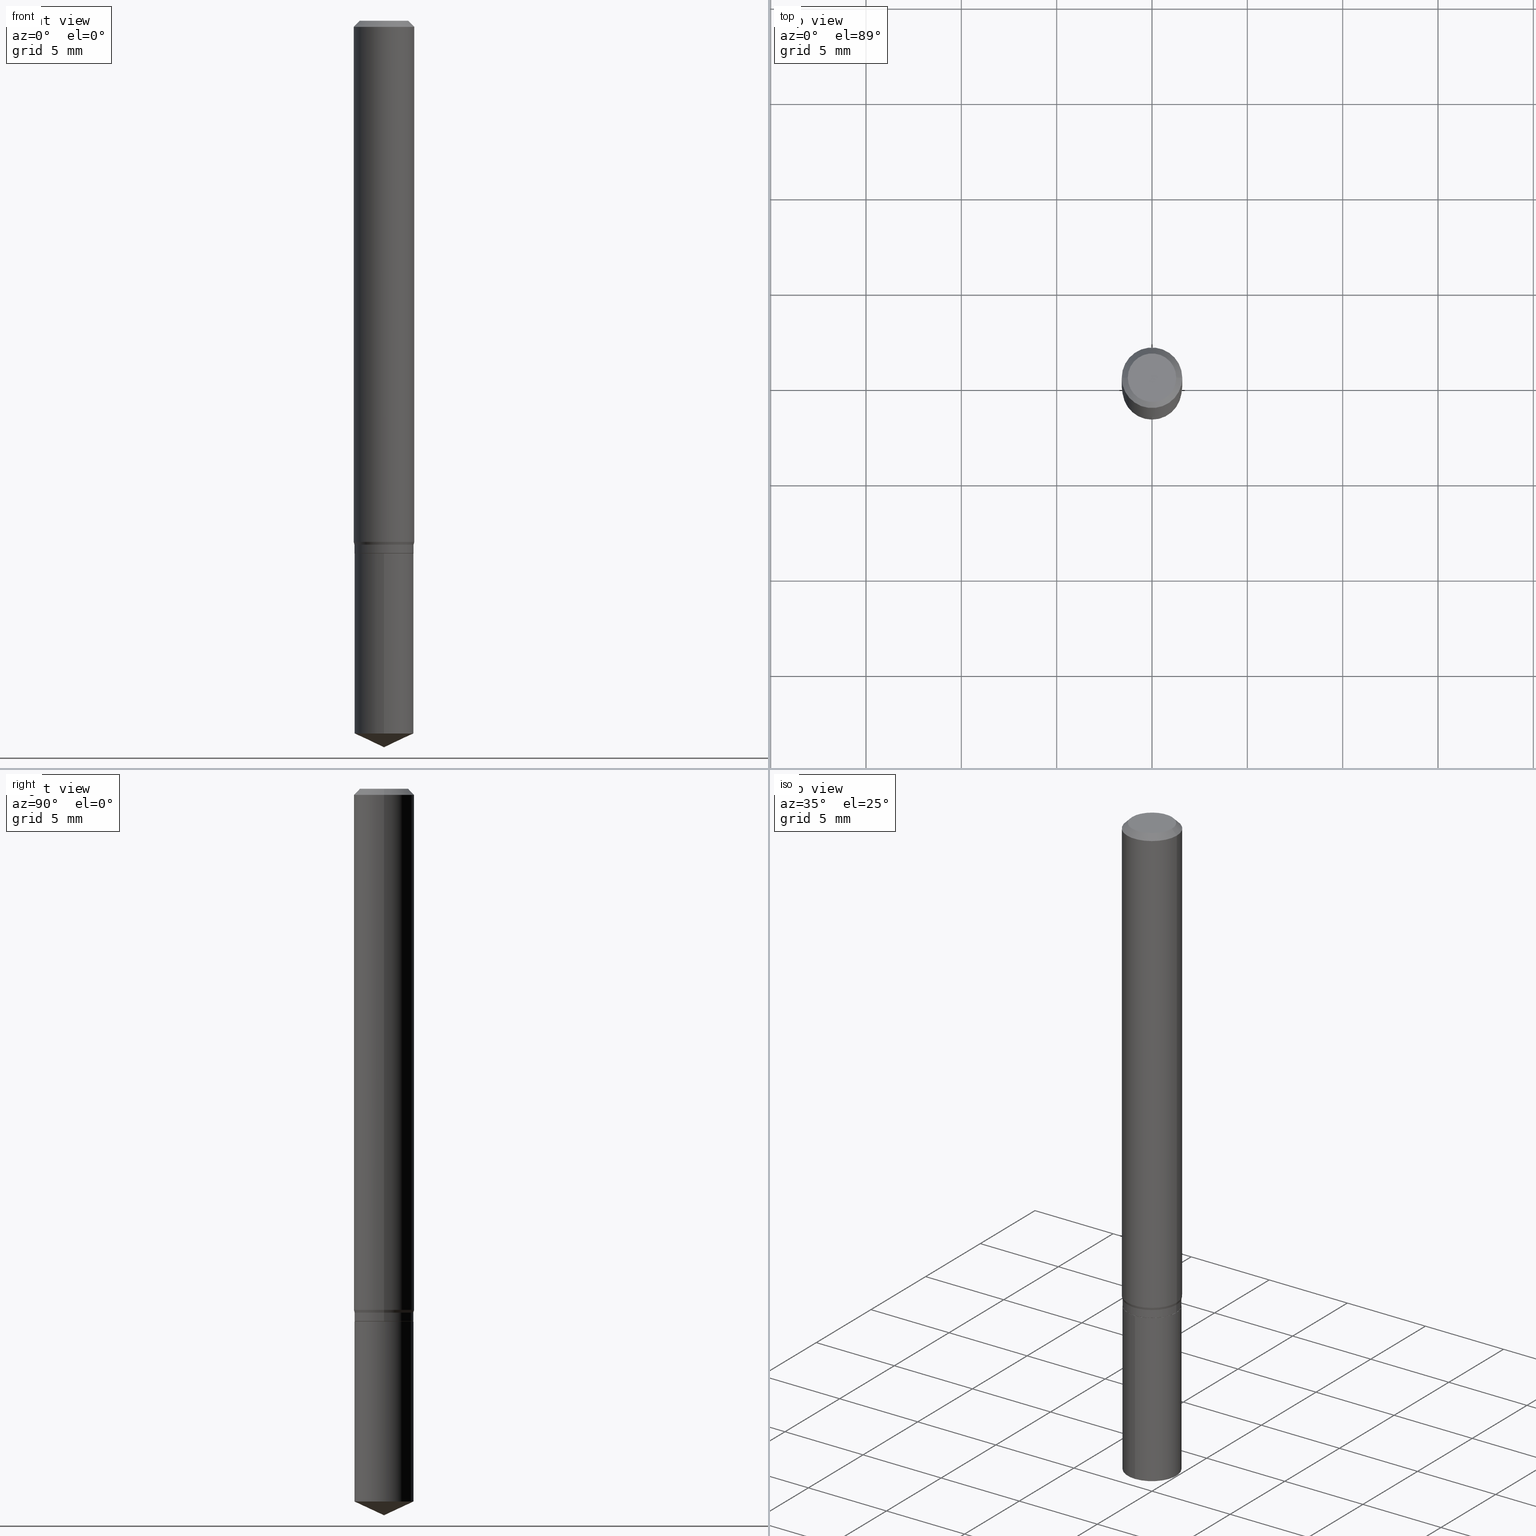
[diagram: canonical four-view strip — front | top / right | iso, engineering-drawing reading convention]
A machine part, canonical four-view strip (front | top / right | iso — engineering-drawing reading convention). The complete STEP part file that produces these views, byte-faithful:
ISO-10303-21;
HEADER;
FILE_DESCRIPTION (( 'STEP AP203' ),
    '1' );
FILE_NAME ('07229.STEP',
    '2024-04-23T20:06:19',
    ( '' ),
    ( '' ),
    'SwSTEP 2.0',
    'SolidWorks 2023',
    '' );
FILE_SCHEMA (( 'CONFIG_CONTROL_DESIGN' ));
ENDSEC;

DATA;
#1 = DIRECTION ( 'NONE',  ( -2.445468806185136597E-29, 3.491481338843145583E-15, 1.000000000000000000 ) ) ;
#2 = CARTESIAN_POINT ( 'NONE',  ( 0.04999999999999999584, -4.077247707424184212E-16, -1.592040838888913461E-18 ) ) ;
#3 = EDGE_CURVE ( 'NONE', #222, #96, #373, .T. ) ;
#4 = CALENDAR_DATE ( 2024, 23, 4 ) ;
#5 = CARTESIAN_POINT ( 'NONE',  ( -9.260740279983036507E-28, 1.322265303911854087E-13, 37.87007874015748143 ) ) ;
#6 = CONICAL_SURFACE ( 'NONE', #287, 0.06099999999999999173, 0.2617993877991509066 ) ;
#7 = SECURITY_CLASSIFICATION ( '', '', #465 ) ;
#8 = CARTESIAN_POINT ( 'NONE',  ( -0.06250000000000000000, -1.456327441318339620E-15, -0.01250000000000008049 ) ) ;
#9 = APPROVAL_ROLE ( '' ) ;
#10 = EDGE_CURVE ( 'NONE', #96, #66, #38, .T. ) ;
#11 = PERSON_AND_ORGANIZATION ( #89, #128 ) ;
#12 = CARTESIAN_POINT ( 'NONE',  ( 3.893286209682126177E-47, -5.558580879666067980E-33, -1.592040838891559689E-18 ) ) ;
#13 = EDGE_LOOP ( 'NONE', ( #438, #105, #280, #173 ) ) ;
#14 = CIRCLE ( 'NONE', #294, 0.06099999999999999173 ) ;
#15 = CC_DESIGN_APPROVAL ( #52, ( #441 ) ) ;
#16 = ORIENTED_EDGE ( 'NONE', *, *, #223, .T. ) ;
#17 = VERTEX_POINT ( 'NONE', #482 ) ;
#18 = EDGE_CURVE ( 'NONE', #478, #445, #466, .T. ) ;
#19 = DIRECTION ( 'NONE',  ( -1.000000000000000000, 6.982962677686266711E-15, 0.000000000000000000 ) ) ;
#20 = ORIENTED_EDGE ( 'NONE', *, *, #292, .T. ) ;
#21 = COORDINATED_UNIVERSAL_TIME_OFFSET ( 5, 0, .BEHIND. ) ;
#22 = PRODUCT_DEFINITION_SHAPE ( 'NONE', 'NONE',  #273 ) ;
#23 = AXIS2_PLACEMENT_3D ( 'NONE', #157, #451, #406 ) ;
#24 = EDGE_LOOP ( 'NONE', ( #61, #20, #439, #103 ) ) ;
#25 = ADVANCED_FACE ( 'NONE', ( #313 ), #274, .F. ) ;
#26 = ORIENTED_EDGE ( 'NONE', *, *, #92, .T. ) ;
#27 = VERTEX_POINT ( 'NONE', #2 ) ;
#28 = DIRECTION ( 'NONE',  ( -6.982962677686265922E-15, -1.000000000000000000, 4.478439333875842027E-15 ) ) ;
#29 = ORIENTED_EDGE ( 'NONE', *, *, #189, .T. ) ;
#30 = CIRCLE ( 'NONE', #370, 0.06099999999999999173 ) ;
#31 = VECTOR ( 'NONE', #40, 39.37007874015748854 ) ;
#32 = CYLINDRICAL_SURFACE ( 'NONE', #213, 0.06099999999999999173 ) ;
#33 = DIRECTION ( 'NONE',  ( -6.982962677686265922E-15, -1.000000000000000000, 4.478439333875842027E-15 ) ) ;
#34 = CARTESIAN_POINT ( 'NONE',  ( 2.690015686803650369E-29, -3.840629472727460101E-15, -1.100000000000000089 ) ) ;
#35 = DIRECTION ( 'NONE',  ( -2.438088387897960049E-29, 3.491481338843145188E-15, 1.000000000000000000 ) ) ;
#36 = CARTESIAN_POINT ( 'NONE',  ( 0.000000000000000000, 0.000000000000000000, 0.000000000000000000 ) ) ;
#37 = CARTESIAN_POINT ( 'NONE',  ( 3.668252923656895710E-29, -5.237152723863177100E-15, -1.500000000000000222 ) ) ;
#38 = CIRCLE ( 'NONE', #72, 0.06250000000000000000 ) ;
#39 = LOCAL_TIME ( 16, 6, 19.00000000000000000, #203 ) ;
#40 = DIRECTION ( 'NONE',  ( 0.2588190451025221828, 1.565188264969615657E-15, 0.9659258262890678681 ) ) ;
#41 = DIRECTION ( 'NONE',  ( -2.445468806185136597E-29, 3.491481338843145583E-15, 1.000000000000000000 ) ) ;
#42 = ADVANCED_FACE ( 'NONE', ( #190 ), #449, .T. ) ;
#43 = DIRECTION ( 'NONE',  ( 1.000000000000000000, -6.982962677686269866E-15, 0.000000000000000000 ) ) ;
#44 = CC_DESIGN_PERSON_AND_ORGANIZATION_ASSIGNMENT ( #281, #267, ( #7 ) ) ;
#45 = APPROVAL_STATUS ( 'not_yet_approved' ) ;
#46 = DIRECTION ( 'NONE',  ( -2.445468806185136597E-29, 3.491481338843145583E-15, 1.000000000000000000 ) ) ;
#47 = CIRCLE ( 'NONE', #237, 0.06099999999999999173 ) ;
#48 = ADVANCED_FACE ( 'NONE', ( #85 ), #339, .T. ) ;
#49 = DIRECTION ( 'NONE',  ( -2.445399690415121810E-29, 3.491580316559632610E-15, 1.000000000000000000 ) ) ;
#50 = DIRECTION ( 'NONE',  ( -2.445399690415121530E-29, 3.491580316559632610E-15, 1.000000000000000000 ) ) ;
#51 = APPROVAL_DATE_TIME ( #277, #52 ) ;
#52 = APPROVAL ( #393, 'UNSPECIFIED' ) ;
#53 = DIRECTION ( 'NONE',  ( 2.445468806185136597E-29, -3.491481338843145583E-15, -1.000000000000000000 ) ) ;
#54 = SHAPE_DEFINITION_REPRESENTATION ( #22, #67 ) ;
#55 = EDGE_LOOP ( 'NONE', ( #469, #127, #405, #139 ) ) ;
#56 = AXIS2_PLACEMENT_3D ( 'NONE', #158, #305, #160 ) ;
#57 =( GEOMETRIC_REPRESENTATION_CONTEXT ( 3 ) GLOBAL_UNCERTAINTY_ASSIGNED_CONTEXT ( ( #155 ) ) GLOBAL_UNIT_ASSIGNED_CONTEXT ( ( #240, #396, #86 ) ) REPRESENTATION_CONTEXT ( 'NONE', 'WORKASPACE' ) );
#58 = DIRECTION ( 'NONE',  ( 0.7071067811865232589, -2.468850131082003836E-15, 0.7071067811865715536 ) ) ;
#59 = AXIS2_PLACEMENT_3D ( 'NONE', #104, #304, #75 ) ;
#60 = ORIENTED_EDGE ( 'NONE', *, *, #397, .F. ) ;
#61 = ORIENTED_EDGE ( 'NONE', *, *, #223, .F. ) ;
#62 = ORIENTED_EDGE ( 'NONE', *, *, #268, .F. ) ;
#63 = AXIS2_PLACEMENT_3D ( 'NONE', #270, #46, #415 ) ;
#64 = ORIENTED_EDGE ( 'NONE', *, *, #324, .T. ) ;
#65 = APPROVAL ( #437, 'UNSPECIFIED' ) ;
#66 = VERTEX_POINT ( 'NONE', #308 ) ;
#67 = ADVANCED_BREP_SHAPE_REPRESENTATION ( '07229', ( #366, #209, #342 ), #57 ) ;
#68 = CARTESIAN_POINT ( 'NONE',  ( 0.06250000000000000000, -4.724246415962602840E-16, -0.01250000000000008049 ) ) ;
#69 = EDGE_LOOP ( 'NONE', ( #100, #471 ) ) ;
#70 = FACE_OUTER_BOUND ( 'NONE', #395, .T. ) ;
#71 = EDGE_LOOP ( 'NONE', ( #359, #187, #401, #430 ) ) ;
#72 = AXIS2_PLACEMENT_3D ( 'NONE', #219, #331, #108 ) ;
#73 = DIRECTION ( 'NONE',  ( -2.445468806185136597E-29, 3.491481338843145583E-15, 1.000000000000000000 ) ) ;
#74 = EDGE_LOOP ( 'NONE', ( #323, #409, #289, #291 ) ) ;
#75 = DIRECTION ( 'NONE',  ( -1.000000000000000000, 6.982962677686265922E-15, -4.876176775795935793E-29 ) ) ;
#76 = DIRECTION ( 'NONE',  ( -2.445468806185136597E-29, 3.491481338843145583E-15, 1.000000000000000000 ) ) ;
#77 = CARTESIAN_POINT ( 'NONE',  ( 0.06099999999999999173, -4.202696087565493352E-15, -1.081700000000000106 ) ) ;
#78 = CARTESIAN_POINT ( 'NONE',  ( 3.668099535622682715E-29, -5.237370474839449507E-15, -1.500000000000000222 ) ) ;
#79 = VECTOR ( 'NONE', #91, 39.37007874015748854 ) ;
#80 = CONICAL_SURFACE ( 'NONE', #488, 0.06049999999999999128, 0.7853981633974141952 ) ;
#81 = COORDINATED_UNIVERSAL_TIME_OFFSET ( 5, 0, .BEHIND. ) ;
#82 = DIRECTION ( 'NONE',  ( -2.445468806185136597E-29, 3.491481338843145583E-15, 1.000000000000000000 ) ) ;
#83 = DIRECTION ( 'NONE',  ( 1.000000000000000000, -6.982962677686269866E-15, 0.000000000000000000 ) ) ;
#84 = EDGE_CURVE ( 'NONE', #402, #96, #156, .T. ) ;
#85 = FACE_OUTER_BOUND ( 'NONE', #71, .T. ) ;
#86 =( NAMED_UNIT ( * ) SI_UNIT ( $, .STERADIAN. ) SOLID_ANGLE_UNIT ( ) );
#87 = PRODUCT ( '07229', '07229', '', ( #458 ) ) ;
#88 = FACE_OUTER_BOUND ( 'NONE', #257, .T. ) ;
#89 = PERSON ( 'UNSPECIFIED', 'UNSPECIFIED', 'UNSPECIFIED', ('UNSPECIFIED'), ('UNSPECIFIED'), ('UNSPECIFIED') ) ;
#90 = ORIENTED_EDGE ( 'NONE', *, *, #92, .F. ) ;
#91 = DIRECTION ( 'NONE',  ( -0.7071067811865232589, 7.493145998870265808E-15, 0.7071067811865715536 ) ) ;
#92 = EDGE_CURVE ( 'NONE', #27, #222, #301, .T. ) ;
#93 = ORIENTED_EDGE ( 'NONE', *, *, #123, .F. ) ;
#94 = AXIS2_PLACEMENT_3D ( 'NONE', #470, #53, #19 ) ;
#95 = DIRECTION ( 'NONE',  ( 1.000000000000000000, -6.982962677686269866E-15, 0.000000000000000000 ) ) ;
#96 = VERTEX_POINT ( 'NONE', #8 ) ;
#97 = APPLICATION_CONTEXT ( 'configuration controlled 3d designs of mechanical parts and assemblies' ) ;
#98 = ORIENTED_EDGE ( 'NONE', *, *, #258, .T. ) ;
#99 = COORDINATED_UNIVERSAL_TIME_OFFSET ( 5, 0, .BEHIND. ) ;
#100 = ORIENTED_EDGE ( 'NONE', *, *, #18, .T. ) ;
#101 = CONICAL_SURFACE ( 'NONE', #248, 84.42940631927440620, 1.134464013796316229 ) ;
#102 = AXIS2_PLACEMENT_3D ( 'NONE', #36, #483, #453 ) ;
#103 = ORIENTED_EDGE ( 'NONE', *, *, #136, .F. ) ;
#104 = CARTESIAN_POINT ( 'NONE',  ( 1.946643104841063088E-47, -2.779290439833033990E-33, -7.960204194457798443E-19 ) ) ;
#105 = ORIENTED_EDGE ( 'NONE', *, *, #324, .F. ) ;
#106 = DIRECTION ( 'NONE',  ( -2.445468806185136597E-29, 3.491481338843145583E-15, 1.000000000000000000 ) ) ;
#107 = ADVANCED_FACE ( 'NONE', ( #487 ), #422, .T. ) ;
#108 = DIRECTION ( 'NONE',  ( 1.000000000000000000, -6.982962677686266711E-15, 0.000000000000000000 ) ) ;
#109 = CYLINDRICAL_SURFACE ( 'NONE', #480, 0.06250000000000006939 ) ;
#110 = EDGE_LOOP ( 'NONE', ( #365, #147, #243 ) ) ;
#111 = CC_DESIGN_PERSON_AND_ORGANIZATION_ASSIGNMENT ( #165, #316, ( #441 ) ) ;
#112 = CARTESIAN_POINT ( 'NONE',  ( 4.334310688136970464E-16, 0.06099999999999615452, -1.100000000000000311 ) ) ;
#113 = DIRECTION ( 'NONE',  ( -2.445468806185136597E-29, 3.491481338843145583E-15, 1.000000000000000000 ) ) ;
#114 = EDGE_CURVE ( 'NONE', #403, #435, #425, .T. ) ;
#115 = DIRECTION ( 'NONE',  ( -2.445468806185136877E-29, 3.491481338843145188E-15, 1.000000000000000000 ) ) ;
#116 = CARTESIAN_POINT ( 'NONE',  ( -0.06099999999999999173, -3.343304295412969600E-15, -1.081700000000000106 ) ) ;
#117 = PERSON_AND_ORGANIZATION_ROLE ( 'creator' ) ;
#118 = DIRECTION ( 'NONE',  ( -2.445468806185136597E-29, 3.491481338843145583E-15, 1.000000000000000000 ) ) ;
#119 = AXIS2_PLACEMENT_3D ( 'NONE', #166, #130, #242 ) ;
#120 = APPROVAL_PERSON_ORGANIZATION ( #205, #52, #9 ) ;
#121 = CARTESIAN_POINT ( 'NONE',  ( -4.259607233388352844E-16, -0.06100000000000383588, -1.099999999999999645 ) ) ;
#122 = CARTESIAN_POINT ( 'NONE',  ( 2.690015686803650369E-29, -3.840629472727460101E-15, -1.100000000000000089 ) ) ;
#123 = EDGE_CURVE ( 'NONE', #17, #402, #227, .T. ) ;
#124 = PERSON_AND_ORGANIZATION ( #89, #128 ) ;
#125 = DIRECTION ( 'NONE',  ( -2.445468806185136597E-29, 3.491481338843145583E-15, 1.000000000000000000 ) ) ;
#126 = CARTESIAN_POINT ( 'NONE',  ( 0.000000000000000000, 0.000000000000000000, 0.000000000000000000 ) ) ;
#127 = ORIENTED_EDGE ( 'NONE', *, *, #369, .T. ) ;
#128 = ORGANIZATION ( 'UNSPECIFIED', 'UNSPECIFIED', '' ) ;
#129 = DATE_AND_TIME ( #238, #250 ) ;
#130 = DIRECTION ( 'NONE',  ( -2.445468806185136597E-29, 3.491481338843145583E-15, 1.000000000000000000 ) ) ;
#131 = APPROVAL_DATE_TIME ( #314, #65 ) ;
#132 = ADVANCED_FACE ( 'NONE', ( #380 ), #473, .T. ) ;
#133 = DIRECTION ( 'NONE',  ( -2.445468806185136597E-29, 3.491481338843145583E-15, 1.000000000000000000 ) ) ;
#134 = CIRCLE ( 'NONE', #153, 0.06250000000000000000 ) ;
#135 = DIRECTION ( 'NONE',  ( -2.445468806185136597E-29, 3.491481338843145583E-15, 1.000000000000000000 ) ) ;
#136 = EDGE_CURVE ( 'NONE', #17, #293, #433, .T. ) ;
#137 = ORIENTED_EDGE ( 'NONE', *, *, #181, .F. ) ;
#138 = DATE_AND_TIME ( #231, #358 ) ;
#139 = ORIENTED_EDGE ( 'NONE', *, *, #477, .F. ) ;
#140 = VERTEX_POINT ( 'NONE', #490 ) ;
#141 = DESIGN_CONTEXT ( 'detailed design', #97, 'design' ) ;
#142 = AXIS2_PLACEMENT_3D ( 'NONE', #206, #133, #322 ) ;
#143 = VECTOR ( 'NONE', #333, 39.37007874015748854 ) ;
#144 = CARTESIAN_POINT ( 'NONE',  ( 2.690015686803650369E-29, -3.840629472727460101E-15, -1.100000000000000089 ) ) ;
#145 = EDGE_CURVE ( 'NONE', #167, #140, #266, .T. ) ;
#146 = CARTESIAN_POINT ( 'NONE',  ( 2.645263607650462130E-29, -3.776735364226630704E-15, -1.081700000000000106 ) ) ;
#147 = ORIENTED_EDGE ( 'NONE', *, *, #145, .T. ) ;
#148 = DIRECTION ( 'NONE',  ( -2.445399690415121810E-29, 3.491580316559632610E-15, 1.000000000000000000 ) ) ;
#149 = ORIENTED_EDGE ( 'NONE', *, *, #413, .F. ) ;
#150 = DIRECTION ( 'NONE',  ( 6.982962677686265922E-15, 1.000000000000000000, -3.491580316559632610E-15 ) ) ;
#151 = DIRECTION ( 'NONE',  ( -6.982962677686265922E-15, -1.000000000000000000, 4.478439333875842027E-15 ) ) ;
#152 = AXIS2_PLACEMENT_3D ( 'NONE', #197, #76, #199 ) ;
#153 = AXIS2_PLACEMENT_3D ( 'NONE', #299, #73, #265 ) ;
#154 = FACE_OUTER_BOUND ( 'NONE', #262, .T. ) ;
#155 = UNCERTAINTY_MEASURE_WITH_UNIT (LENGTH_MEASURE( 1.000000000000000082E-05 ), #240, 'distance_accuracy_value', 'NONE');
#156 = LINE ( 'NONE', #264, #230 ) ;
#157 = CARTESIAN_POINT ( 'NONE',  ( -9.260740279983036507E-28, 1.322265303911854087E-13, 37.87007874015748143 ) ) ;
#158 = CARTESIAN_POINT ( 'NONE',  ( 3.056836007731440539E-31, -4.364351673553960451E-17, -0.01250000000000008049 ) ) ;
#159 = APPLICATION_PROTOCOL_DEFINITION ( 'international standard', 'config_control_design', 1994, #375 ) ;
#160 = DIRECTION ( 'NONE',  ( -1.000000000000000000, 6.982962677686266711E-15, 0.000000000000000000 ) ) ;
#161 = APPROVAL_PERSON_ORGANIZATION ( #290, #65, #474 ) ;
#162 = CARTESIAN_POINT ( 'NONE',  ( -0.06099999999999999173, -3.374378479328673547E-15, -1.099499999999999922 ) ) ;
#163 = COORDINATED_UNIVERSAL_TIME_OFFSET ( 5, 0, .BEHIND. ) ;
#164 = CARTESIAN_POINT ( 'NONE',  ( -0.06049999999999999128, -3.410751117592599502E-15, -1.100000000000000089 ) ) ;
#165 = PERSON_AND_ORGANIZATION ( #89, #128 ) ;
#166 = CARTESIAN_POINT ( 'NONE',  ( 0.000000000000000000, 0.000000000000000000, 0.000000000000000000 ) ) ;
#167 = VERTEX_POINT ( 'NONE', #78 ) ;
#168 = AXIS2_PLACEMENT_3D ( 'NONE', #388, #82, #232 ) ;
#169 = CIRCLE ( 'NONE', #363, 0.06099999999999999173 ) ;
#170 = DIRECTION ( 'NONE',  ( -6.982962677686265922E-15, -1.000000000000000000, 4.478439333875842027E-15 ) ) ;
#171 = VERTEX_POINT ( 'NONE', #229 ) ;
#172 = DIRECTION ( 'NONE',  ( -2.445468806185136597E-29, 3.491481338843145583E-15, 1.000000000000000000 ) ) ;
#173 = ORIENTED_EDGE ( 'NONE', *, *, #10, .T. ) ;
#174 = ADVANCED_FACE ( 'NONE', ( #456 ), #101, .T. ) ;
#175 = ORIENTED_EDGE ( 'NONE', *, *, #114, .F. ) ;
#176 = PERSON_AND_ORGANIZATION_ROLE ( 'creator' ) ;
#177 = VECTOR ( 'NONE', #464, 39.37007874015748143 ) ;
#178 = VERTEX_POINT ( 'NONE', #162 ) ;
#179 = VERTEX_POINT ( 'NONE', #460 ) ;
#180 = CARTESIAN_POINT ( 'NONE',  ( -0.06250000000000000000, 3.927916506198521080E-16, -0.01250000000000008049 ) ) ;
#181 = EDGE_CURVE ( 'NONE', #435, #403, #381, .T. ) ;
#182 = CIRCLE ( 'NONE', #168, 0.06099999999999999173 ) ;
#183 = CARTESIAN_POINT ( 'NONE',  ( 3.598616738193382173E-29, -5.137944410270138335E-15, -1.471555232852545414 ) ) ;
#184 = CC_DESIGN_SECURITY_CLASSIFICATION ( #7, ( #441 ) ) ;
#185 = ORIENTED_EDGE ( 'NONE', *, *, #216, .T. ) ;
#186 = FACE_OUTER_BOUND ( 'NONE', #485, .T. ) ;
#187 = ORIENTED_EDGE ( 'NONE', *, *, #448, .T. ) ;
#188 = DIRECTION ( 'NONE',  ( -2.445468806185136597E-29, 3.491481338843145583E-15, 1.000000000000000000 ) ) ;
#189 = EDGE_CURVE ( 'NONE', #293, #17, #14, .T. ) ;
#190 = FACE_OUTER_BOUND ( 'NONE', #215, .T. ) ;
#191 = LINE ( 'NONE', #376, #383 ) ;
#192 = CC_DESIGN_PERSON_AND_ORGANIZATION_ASSIGNMENT ( #11, #176, ( #441 ) ) ;
#193 = DIRECTION ( 'NONE',  ( -2.445399690415121530E-29, 3.491580316559632610E-15, 1.000000000000000000 ) ) ;
#194 = CIRCLE ( 'NONE', #201, 0.06099999999999999173 ) ;
#195 = AXIS2_PLACEMENT_3D ( 'NONE', #34, #338, #150 ) ;
#196 = PLANE ( 'NONE',  #195 ) ;
#197 = CARTESIAN_POINT ( 'NONE',  ( 2.690015686803650369E-29, -3.840629472727460101E-15, -1.100000000000000089 ) ) ;
#198 = DIRECTION ( 'NONE',  ( -2.445399690415121530E-29, 3.491580316559632610E-15, 1.000000000000000000 ) ) ;
#199 = DIRECTION ( 'NONE',  ( 1.000000000000000000, -6.982962677686269866E-15, 0.000000000000000000 ) ) ;
#200 = AXIS2_PLACEMENT_3D ( 'NONE', #424, #193, #151 ) ;
#201 = AXIS2_PLACEMENT_3D ( 'NONE', #391, #50, #204 ) ;
#202 = CC_DESIGN_DATE_AND_TIME_ASSIGNMENT ( #275, #352, ( #273 ) ) ;
#203 = COORDINATED_UNIVERSAL_TIME_OFFSET ( 5, 0, .BEHIND. ) ;
#204 = DIRECTION ( 'NONE',  ( -6.982962677686265922E-15, -1.000000000000000000, 4.478439333875842027E-15 ) ) ;
#205 = PERSON_AND_ORGANIZATION ( #89, #128 ) ;
#206 = CARTESIAN_POINT ( 'NONE',  ( 2.631573686900949883E-29, -3.757189785601267277E-15, -1.076101923788646220 ) ) ;
#207 = EDGE_CURVE ( 'NONE', #179, #178, #182, .T. ) ;
#208 = ORIENTED_EDGE ( 'NONE', *, *, #268, .T. ) ;
#209 = MANIFOLD_SOLID_BREP ( 'Body-Move/Copy2[2]', #211 ) ;
#210 = LENGTH_MEASURE_WITH_UNIT ( LENGTH_MEASURE( 0.02539999999999999897 ), #421 );
#211 = CLOSED_SHELL ( 'NONE', ( #328, #286, #379, #297, #249, #428, #459, #348, #132, #361, #25, #42 ) ) ;
#212 = VECTOR ( 'NONE', #384, 39.37007874015748143 ) ;
#213 = AXIS2_PLACEMENT_3D ( 'NONE', #446, #1, #226 ) ;
#214 = EDGE_CURVE ( 'NONE', #171, #140, #47, .T. ) ;
#215 = EDGE_LOOP ( 'NONE', ( #407, #217, #208, #356 ) ) ;
#216 = EDGE_CURVE ( 'NONE', #403, #178, #398, .T. ) ;
#217 = ORIENTED_EDGE ( 'NONE', *, *, #114, .T. ) ;
#218 = DIRECTION ( 'NONE',  ( 0.7071067811865453523, -7.319954787623248157E-15, -0.7071067811865496822 ) ) ;
#219 = CARTESIAN_POINT ( 'NONE',  ( 3.056836007731440539E-31, -4.364351673553960451E-17, -0.01250000000000008049 ) ) ;
#220 = VECTOR ( 'NONE', #330, 39.37007874015748143 ) ;
#221 = DIRECTION ( 'NONE',  ( 1.000000000000000000, -6.982962677686269866E-15, 0.000000000000000000 ) ) ;
#222 = VERTEX_POINT ( 'NONE', #278 ) ;
#223 = EDGE_CURVE ( 'NONE', #178, #17, #288, .T. ) ;
#224 = FACE_OUTER_BOUND ( 'NONE', #74, .T. ) ;
#225 = ORIENTED_EDGE ( 'NONE', *, *, #207, .T. ) ;
#226 = DIRECTION ( 'NONE',  ( 1.000000000000000000, -6.982962677686267499E-15, 4.876176775795935793E-29 ) ) ;
#227 = LINE ( 'NONE', #116, #269 ) ;
#228 = PLANE ( 'NONE',  #59 ) ;
#229 = CARTESIAN_POINT ( 'NONE',  ( -4.259607233388263111E-16, -0.06100000000000515427, -1.471555232852544970 ) ) ;
#230 = VECTOR ( 'NONE', #454, 39.37007874015748143 ) ;
#231 = CALENDAR_DATE ( 2024, 23, 4 ) ;
#232 = DIRECTION ( 'NONE',  ( 1.000000000000000000, -6.982962677686269866E-15, 0.000000000000000000 ) ) ;
#233 = EDGE_CURVE ( 'NONE', #402, #319, #399, .T. ) ;
#234 = DIRECTION ( 'NONE',  ( 1.000000000000000000, -6.982962677686269866E-15, 0.000000000000000000 ) ) ;
#235 = PERSON_AND_ORGANIZATION ( #89, #128 ) ;
#236 = DIRECTION ( 'NONE',  ( 1.000000000000000000, -6.982962677686269866E-15, 0.000000000000000000 ) ) ;
#237 = AXIS2_PLACEMENT_3D ( 'NONE', #463, #276, #170 ) ;
#238 = CALENDAR_DATE ( 2024, 23, 4 ) ;
#239 = ORIENTED_EDGE ( 'NONE', *, *, #189, .F. ) ;
#240 =( CONVERSION_BASED_UNIT ( 'INCH', #210 ) LENGTH_UNIT ( ) NAMED_UNIT ( #255 ) );
#241 = FACE_OUTER_BOUND ( 'NONE', #246, .T. ) ;
#242 = DIRECTION ( 'NONE',  ( 1.000000000000000000, -6.982962677686267499E-15, 4.876176775795935793E-29 ) ) ;
#243 = ORIENTED_EDGE ( 'NONE', *, *, #214, .F. ) ;
#244 = FACE_OUTER_BOUND ( 'NONE', #443, .T. ) ;
#245 = EDGE_LOOP ( 'NONE', ( #137, #175 ) ) ;
#246 = EDGE_LOOP ( 'NONE', ( #90, #251, #412, #329 ) ) ;
#247 = ORIENTED_EDGE ( 'NONE', *, *, #413, .T. ) ;
#248 = AXIS2_PLACEMENT_3D ( 'NONE', #5, #198, #311 ) ;
#249 = ADVANCED_FACE ( 'NONE', ( #426 ), #325, .T. ) ;
#250 = LOCAL_TIME ( 16, 6, 19.00000000000000000, #21 ) ;
#251 = ORIENTED_EDGE ( 'NONE', *, *, #442, .T. ) ;
#252 = FACE_OUTER_BOUND ( 'NONE', #24, .T. ) ;
#253 = CC_DESIGN_PERSON_AND_ORGANIZATION_ASSIGNMENT ( #124, #117, ( #273 ) ) ;
#254 = ORIENTED_EDGE ( 'NONE', *, *, #207, .F. ) ;
#255 = DIMENSIONAL_EXPONENTS ( 1.000000000000000000, 0.000000000000000000, 0.000000000000000000, 0.000000000000000000, 0.000000000000000000, 0.000000000000000000, 0.000000000000000000 ) ;
#256 = DIRECTION ( 'NONE',  ( 1.000000000000000000, -6.982962677686269866E-15, 0.000000000000000000 ) ) ;
#257 = EDGE_LOOP ( 'NONE', ( #431, #185, #254, #62 ) ) ;
#258 = EDGE_CURVE ( 'NONE', #319, #402, #340, .T. ) ;
#259 = CLOSED_SHELL ( 'NONE', ( #107, #174, #434, #48, #423 ) ) ;
#260 = CARTESIAN_POINT ( 'NONE',  ( 0.000000000000000000, 0.000000000000000000, 0.000000000000000000 ) ) ;
#261 = VECTOR ( 'NONE', #218, 39.37007874015748143 ) ;
#262 = EDGE_LOOP ( 'NONE', ( #98, #476, #60, #362 ) ) ;
#263 = CARTESIAN_POINT ( 'NONE',  ( 0.06099999999999999173, -4.259607233388622536E-16, 2.974467833235520511E-30 ) ) ;
#264 = CARTESIAN_POINT ( 'NONE',  ( -0.06250000000000006939, 4.440892098500631092E-16, -3.074334431409319267E-30 ) ) ;
#265 = DIRECTION ( 'NONE',  ( 1.000000000000000000, -6.982962677686266711E-15, 0.000000000000000000 ) ) ;
#266 = LINE ( 'NONE', #37, #212 ) ;
#267 = PERSON_AND_ORGANIZATION_ROLE ( 'classification_officer' ) ;
#268 = EDGE_CURVE ( 'NONE', #435, #179, #436, .T. ) ;
#269 = VECTOR ( 'NONE', #351, 39.37007874015748854 ) ;
#270 = CARTESIAN_POINT ( 'NONE',  ( 3.893286209682126177E-47, -5.558580879666067980E-33, -1.592040838891559689E-18 ) ) ;
#271 = CONICAL_SURFACE ( 'NONE', #23, 84.42940631927440620, 1.134464013796316229 ) ;
#272 = CONICAL_SURFACE ( 'NONE', #392, 0.06099999999999999173, 0.2617993877991509066 ) ;
#273 = PRODUCT_DEFINITION ( 'UNKNOWN', '', #441, #141 ) ;
#274 = PLANE ( 'NONE',  #390 ) ;
#275 = DATE_AND_TIME ( #4, #39 ) ;
#276 = DIRECTION ( 'NONE',  ( -2.445399690415121530E-29, 3.491580316559632610E-15, 1.000000000000000000 ) ) ;
#277 = DATE_AND_TIME ( #315, #295 ) ;
#278 = CARTESIAN_POINT ( 'NONE',  ( -0.04999999999999999584, 3.709698922520826725E-16, -1.592040838894077649E-18 ) ) ;
#279 = AXIS2_PLACEMENT_3D ( 'NONE', #144, #296, #33 ) ;
#280 = ORIENTED_EDGE ( 'NONE', *, *, #3, .T. ) ;
#281 = PERSON_AND_ORGANIZATION ( #89, #128 ) ;
#282 = CARTESIAN_POINT ( 'NONE',  ( -0.06099999999999999173, 4.334310688136610546E-16, -3.000550405055492143E-30 ) ) ;
#283 = EDGE_LOOP ( 'NONE', ( #225, #16, #239, #298 ) ) ;
#284 = DIRECTION ( 'NONE',  ( -2.445468806185136877E-29, 3.491481338843145188E-15, 1.000000000000000000 ) ) ;
#285 = CARTESIAN_POINT ( 'NONE',  ( 2.631573686900949883E-29, -3.757189785601267277E-15, -1.076101923788646220 ) ) ;
#286 = ADVANCED_FACE ( 'NONE', ( #241 ), #310, .T. ) ;
#287 = AXIS2_PLACEMENT_3D ( 'NONE', #326, #135, #236 ) ;
#288 = LINE ( 'NONE', #282, #357 ) ;
#289 = ORIENTED_EDGE ( 'NONE', *, *, #484, .T. ) ;
#290 = PERSON_AND_ORGANIZATION ( #89, #128 ) ;
#291 = ORIENTED_EDGE ( 'NONE', *, *, #10, .F. ) ;
#292 = EDGE_CURVE ( 'NONE', #178, #179, #30, .T. ) ;
#293 = VERTEX_POINT ( 'NONE', #472 ) ;
#294 = AXIS2_PLACEMENT_3D ( 'NONE', #345, #118, #234 ) ;
#295 = LOCAL_TIME ( 16, 6, 19.00000000000000000, #163 ) ;
#296 = DIRECTION ( 'NONE',  ( -2.445399690415121530E-29, 3.491580316559632610E-15, 1.000000000000000000 ) ) ;
#297 = ADVANCED_FACE ( 'NONE', ( #244 ), #6, .T. ) ;
#298 = ORIENTED_EDGE ( 'NONE', *, *, #386, .F. ) ;
#299 = CARTESIAN_POINT ( 'NONE',  ( 3.056836007731440539E-31, -4.364351673553960451E-17, -0.01250000000000008049 ) ) ;
#300 = ORIENTED_EDGE ( 'NONE', *, *, #335, .T. ) ;
#301 = CIRCLE ( 'NONE', #63, 0.04999999999999999584 ) ;
#302 = CARTESIAN_POINT ( 'NONE',  ( 3.668099535622682155E-29, -5.237370474839448718E-15, -1.500000000000000222 ) ) ;
#303 = CARTESIAN_POINT ( 'NONE',  ( 2.690015686803650369E-29, -3.840629472727460101E-15, -1.100000000000000089 ) ) ;
#304 = DIRECTION ( 'NONE',  ( 2.438088387897960049E-29, -3.491481338843145188E-15, -1.000000000000000000 ) ) ;
#305 = DIRECTION ( 'NONE',  ( 2.445468806185136597E-29, -3.491481338843145583E-15, -1.000000000000000000 ) ) ;
#306 = EDGE_CURVE ( 'NONE', #445, #478, #194, .T. ) ;
#307 = DIRECTION ( 'NONE',  ( -2.445468806185136597E-29, 3.491481338843145583E-15, 1.000000000000000000 ) ) ;
#308 = CARTESIAN_POINT ( 'NONE',  ( 0.06250000000000000000, -4.800786840909312308E-16, -0.01250000000000008049 ) ) ;
#309 = CARTESIAN_POINT ( 'NONE',  ( 0.06250000000000006939, -4.364351673553921624E-16, 3.047610484872463374E-30 ) ) ;
#310 = CONICAL_SURFACE ( 'NONE', #94, 0.06250000000000000000, 0.7853981633974452814 ) ;
#311 = DIRECTION ( 'NONE',  ( -6.982962677686266711E-15, -1.000000000000000000, 3.520397390770451109E-15 ) ) ;
#312 = PERSON_AND_ORGANIZATION ( #89, #128 ) ;
#313 = FACE_OUTER_BOUND ( 'NONE', #245, .T. ) ;
#314 = DATE_AND_TIME ( #320, #419 ) ;
#315 = CALENDAR_DATE ( 2024, 23, 4 ) ;
#316 = PERSON_AND_ORGANIZATION_ROLE ( 'design_supplier' ) ;
#317 = DIRECTION ( 'NONE',  ( -2.445468806185136597E-29, 3.491481338843145583E-15, 1.000000000000000000 ) ) ;
#318 = AXIS2_PLACEMENT_3D ( 'NONE', #417, #125, #385 ) ;
#319 = VERTEX_POINT ( 'NONE', #354 ) ;
#320 = CALENDAR_DATE ( 2024, 23, 4 ) ;
#321 = CIRCLE ( 'NONE', #450, 0.04999999999999999584 ) ;
#322 = DIRECTION ( 'NONE',  ( 1.000000000000000000, -6.982962677686264344E-15, 0.000000000000000000 ) ) ;
#323 = ORIENTED_EDGE ( 'NONE', *, *, #84, .F. ) ;
#324 = EDGE_CURVE ( 'NONE', #222, #27, #321, .T. ) ;
#325 = CYLINDRICAL_SURFACE ( 'NONE', #119, 0.06099999999999999173 ) ;
#326 = CARTESIAN_POINT ( 'NONE',  ( 2.645263607650462130E-29, -3.776735364226630704E-15, -1.081700000000000106 ) ) ;
#327 = DATE_TIME_ROLE ( 'classification_date' ) ;
#328 = ADVANCED_FACE ( 'NONE', ( #88 ), #80, .T. ) ;
#329 = ORIENTED_EDGE ( 'NONE', *, *, #3, .F. ) ;
#330 = DIRECTION ( 'NONE',  ( -0.7071067811865453523, 2.468850131082234184E-15, -0.7071067811865496822 ) ) ;
#331 = DIRECTION ( 'NONE',  ( -2.445468806185136597E-29, 3.491481338843145583E-15, 1.000000000000000000 ) ) ;
#332 = AXIS2_PLACEMENT_3D ( 'NONE', #122, #41, #83 ) ;
#333 = DIRECTION ( 'NONE',  ( -6.328713451373374112E-15, -0.9063077870366492705, 0.4226182617407007180 ) ) ;
#334 = ORIENTED_EDGE ( 'NONE', *, *, #258, .F. ) ;
#335 = EDGE_CURVE ( 'NONE', #167, #171, #378, .T. ) ;
#336 = CARTESIAN_POINT ( 'NONE',  ( -4.259607233388352844E-16, -0.06100000000000383588, -1.099999999999999645 ) ) ;
#337 = ORIENTED_EDGE ( 'NONE', *, *, #136, .T. ) ;
#338 = DIRECTION ( 'NONE',  ( 2.445399690415121250E-29, -3.491580316559632610E-15, -1.000000000000000000 ) ) ;
#339 = CYLINDRICAL_SURFACE ( 'NONE', #440, 0.06099999999999999173 ) ;
#340 = CIRCLE ( 'NONE', #457, 0.06250000000000012490 ) ;
#341 = FACE_OUTER_BOUND ( 'NONE', #69, .T. ) ;
#342 = AXIS2_PLACEMENT_3D ( 'NONE', #126, #349, #387 ) ;
#343 = CARTESIAN_POINT ( 'NONE',  ( 2.690015686803650369E-29, -3.840629472727460101E-15, -1.100000000000000089 ) ) ;
#344 = CYLINDRICAL_SURFACE ( 'NONE', #102, 0.06250000000000006939 ) ;
#345 = CARTESIAN_POINT ( 'NONE',  ( 2.645263607650462130E-29, -3.776735364226630704E-15, -1.081700000000000106 ) ) ;
#346 = PERSON_AND_ORGANIZATION_ROLE ( 'design_owner' ) ;
#347 = DIRECTION ( 'NONE',  ( -6.982962677686265922E-15, -1.000000000000000000, 4.478439333875842027E-15 ) ) ;
#348 = ADVANCED_FACE ( 'NONE', ( #224 ), #109, .T. ) ;
#349 = DIRECTION ( 'NONE',  ( 0.000000000000000000, 0.000000000000000000, 1.000000000000000000 ) ) ;
#350 = AXIS2_PLACEMENT_3D ( 'NONE', #303, #113, #43 ) ;
#351 = DIRECTION ( 'NONE',  ( -0.2588190451025221828, 5.211531920934554986E-15, 0.9659258262890678681 ) ) ;
#352 = DATE_TIME_ROLE ( 'creation_date' ) ;
#353 = PRODUCT_RELATED_PRODUCT_CATEGORY ( 'detail', '', ( #87 ) ) ;
#354 = CARTESIAN_POINT ( 'NONE',  ( 0.06250000000000012490, -4.193624952956660524E-15, -1.076101923788646220 ) ) ;
#355 = CARTESIAN_POINT ( 'NONE',  ( 2.688792952400557567E-29, -3.838883732058038598E-15, -1.099499999999999922 ) ) ;
#356 = ORIENTED_EDGE ( 'NONE', *, *, #292, .F. ) ;
#357 = VECTOR ( 'NONE', #284, 39.37007874015748143 ) ;
#358 = LOCAL_TIME ( 16, 6, 19.00000000000000000, #81 ) ;
#359 = ORIENTED_EDGE ( 'NONE', *, *, #369, .F. ) ;
#360 = CC_DESIGN_PERSON_AND_ORGANIZATION_ASSIGNMENT ( #235, #346, ( #87 ) ) ;
#361 = ADVANCED_FACE ( 'NONE', ( #70 ), #228, .F. ) ;
#362 = ORIENTED_EDGE ( 'NONE', *, *, #484, .F. ) ;
#363 = AXIS2_PLACEMENT_3D ( 'NONE', #183, #367, #28 ) ;
#364 = ORIENTED_EDGE ( 'NONE', *, *, #233, .F. ) ;
#365 = ORIENTED_EDGE ( 'NONE', *, *, #335, .F. ) ;
#366 = MANIFOLD_SOLID_BREP ( 'Body-Move/Copy2[1]', #259 ) ;
#367 = DIRECTION ( 'NONE',  ( -2.445399690415121530E-29, 3.491580316559632610E-15, 1.000000000000000000 ) ) ;
#368 = ORIENTED_EDGE ( 'NONE', *, *, #145, .F. ) ;
#369 = EDGE_CURVE ( 'NONE', #140, #445, #191, .T. ) ;
#370 = AXIS2_PLACEMENT_3D ( 'NONE', #355, #432, #95 ) ;
#371 = CC_DESIGN_APPROVAL ( #374, ( #273 ) ) ;
#372 = LINE ( 'NONE', #336, #410 ) ;
#373 = LINE ( 'NONE', #180, #220 ) ;
#374 = APPROVAL ( #45, 'UNSPECIFIED' ) ;
#375 = APPLICATION_CONTEXT ( 'configuration controlled 3d designs of mechanical parts and assemblies' ) ;
#376 = CARTESIAN_POINT ( 'NONE',  ( 4.334310688136878759E-16, 0.06099999999999615452, -1.100000000000000311 ) ) ;
#377 = DIRECTION ( 'NONE',  ( -2.445399690415121530E-29, 3.491580316559632610E-15, 1.000000000000000000 ) ) ;
#378 = LINE ( 'NONE', #302, #143 ) ;
#379 = ADVANCED_FACE ( 'NONE', ( #154 ), #344, .T. ) ;
#380 = FACE_OUTER_BOUND ( 'NONE', #13, .T. ) ;
#381 = CIRCLE ( 'NONE', #332, 0.06049999999999999128 ) ;
#382 = LINE ( 'NONE', #263, #404 ) ;
#383 = VECTOR ( 'NONE', #148, 39.37007874015748143 ) ;
#384 = DIRECTION ( 'NONE',  ( 6.439704144417030353E-15, 0.9063077870366522681, 0.4226182617406943898 ) ) ;
#385 = DIRECTION ( 'NONE',  ( 1.000000000000000000, -6.982962677686269866E-15, 0.000000000000000000 ) ) ;
#386 = EDGE_CURVE ( 'NONE', #179, #293, #382, .T. ) ;
#387 = DIRECTION ( 'NONE',  ( 1.000000000000000000, 0.000000000000000000, 0.000000000000000000 ) ) ;
#388 = CARTESIAN_POINT ( 'NONE',  ( 2.688792952400557567E-29, -3.838883732058038598E-15, -1.099499999999999922 ) ) ;
#389 = APPLICATION_PROTOCOL_DEFINITION ( 'international standard', 'config_control_design', 1994, #97 ) ;
#390 = AXIS2_PLACEMENT_3D ( 'NONE', #452, #35, #420 ) ;
#391 = CARTESIAN_POINT ( 'NONE',  ( 2.690015686803650369E-29, -3.840629472727460101E-15, -1.100000000000000089 ) ) ;
#392 = AXIS2_PLACEMENT_3D ( 'NONE', #146, #106, #221 ) ;
#393 = APPROVAL_STATUS ( 'not_yet_approved' ) ;
#394 = DIRECTION ( 'NONE',  ( 1.000000000000000000, -6.982962677686264344E-15, 0.000000000000000000 ) ) ;
#395 = EDGE_LOOP ( 'NONE', ( #64, #26 ) ) ;
#396 =( NAMED_UNIT ( * ) PLANE_ANGLE_UNIT ( ) SI_UNIT ( $, .RADIAN. ) );
#397 = EDGE_CURVE ( 'NONE', #66, #96, #134, .T. ) ;
#398 = LINE ( 'NONE', #164, #79 ) ;
#399 = CIRCLE ( 'NONE', #142, 0.06250000000000012490 ) ;
#400 = CC_DESIGN_APPROVAL ( #65, ( #7 ) ) ;
#401 = ORIENTED_EDGE ( 'NONE', *, *, #477, .T. ) ;
#402 = VERTEX_POINT ( 'NONE', #411 ) ;
#403 = VERTEX_POINT ( 'NONE', #444 ) ;
#404 = VECTOR ( 'NONE', #115, 39.37007874015748143 ) ;
#405 = ORIENTED_EDGE ( 'NONE', *, *, #18, .F. ) ;
#406 = DIRECTION ( 'NONE',  ( -6.982962677686266711E-15, -1.000000000000000000, 3.520397390770451109E-15 ) ) ;
#407 = ORIENTED_EDGE ( 'NONE', *, *, #216, .F. ) ;
#408 = LINE ( 'NONE', #68, #261 ) ;
#409 = ORIENTED_EDGE ( 'NONE', *, *, #233, .T. ) ;
#410 = VECTOR ( 'NONE', #49, 39.37007874015748143 ) ;
#411 = CARTESIAN_POINT ( 'NONE',  ( -0.06250000000000012490, -3.313100575751204266E-15, -1.076101923788646220 ) ) ;
#412 = ORIENTED_EDGE ( 'NONE', *, *, #397, .T. ) ;
#413 = EDGE_CURVE ( 'NONE', #293, #319, #416, .T. ) ;
#414 = CARTESIAN_POINT ( 'NONE',  ( 0.06049999999999999128, -4.263098714727479742E-15, -1.100000000000000089 ) ) ;
#415 = DIRECTION ( 'NONE',  ( 1.000000000000000000, -6.982962677686265922E-15, 4.875957971899673662E-29 ) ) ;
#416 = LINE ( 'NONE', #77, #31 ) ;
#417 = CARTESIAN_POINT ( 'NONE',  ( 2.645263607650462130E-29, -3.776735364226630704E-15, -1.081700000000000106 ) ) ;
#418 = LINE ( 'NONE', #309, #177 ) ;
#419 = LOCAL_TIME ( 16, 6, 19.00000000000000000, #99 ) ;
#420 = DIRECTION ( 'NONE',  ( 1.000000000000000000, -6.982962677686265922E-15, 4.876176775795935793E-29 ) ) ;
#421 =( LENGTH_UNIT ( ) NAMED_UNIT ( * ) SI_UNIT ( $, .METRE. ) );
#422 = CYLINDRICAL_SURFACE ( 'NONE', #200, 0.06099999999999999173 ) ;
#423 = ADVANCED_FACE ( 'NONE', ( #341 ), #196, .F. ) ;
#424 = CARTESIAN_POINT ( 'NONE',  ( 2.690015686803650369E-29, -3.840629472727460101E-15, -1.100000000000000089 ) ) ;
#425 = CIRCLE ( 'NONE', #152, 0.06049999999999999128 ) ;
#426 = FACE_OUTER_BOUND ( 'NONE', #283, .T. ) ;
#427 = EDGE_LOOP ( 'NONE', ( #93, #337, #247, #364 ) ) ;
#428 = ADVANCED_FACE ( 'NONE', ( #252 ), #32, .T. ) ;
#429 = CARTESIAN_POINT ( 'NONE',  ( 0.06049999999999999128, -4.263098714727479742E-15, -1.100000000000000089 ) ) ;
#430 = ORIENTED_EDGE ( 'NONE', *, *, #306, .F. ) ;
#431 = ORIENTED_EDGE ( 'NONE', *, *, #181, .T. ) ;
#432 = DIRECTION ( 'NONE',  ( -2.445468806185136597E-29, 3.491481338843145583E-15, 1.000000000000000000 ) ) ;
#433 = CIRCLE ( 'NONE', #318, 0.06099999999999999173 ) ;
#434 = ADVANCED_FACE ( 'NONE', ( #186 ), #271, .T. ) ;
#435 = VERTEX_POINT ( 'NONE', #414 ) ;
#436 = LINE ( 'NONE', #429, #479 ) ;
#437 = APPROVAL_STATUS ( 'not_yet_approved' ) ;
#438 = ORIENTED_EDGE ( 'NONE', *, *, #442, .F. ) ;
#439 = ORIENTED_EDGE ( 'NONE', *, *, #386, .T. ) ;
#440 = AXIS2_PLACEMENT_3D ( 'NONE', #343, #377, #347 ) ;
#441 = PRODUCT_DEFINITION_FORMATION_WITH_SPECIFIED_SOURCE ( 'ANY', '', #87, .NOT_KNOWN. ) ;
#442 = EDGE_CURVE ( 'NONE', #27, #66, #408, .T. ) ;
#443 = EDGE_LOOP ( 'NONE', ( #29, #475, #334, #149 ) ) ;
#444 = CARTESIAN_POINT ( 'NONE',  ( -0.06049999999999999128, -3.408101890418488695E-15, -1.100000000000000089 ) ) ;
#445 = VERTEX_POINT ( 'NONE', #112 ) ;
#446 = CARTESIAN_POINT ( 'NONE',  ( 0.000000000000000000, 0.000000000000000000, 0.000000000000000000 ) ) ;
#447 = ORIENTED_EDGE ( 'NONE', *, *, #448, .F. ) ;
#448 = EDGE_CURVE ( 'NONE', #140, #171, #169, .T. ) ;
#449 = CONICAL_SURFACE ( 'NONE', #350, 0.06049999999999999128, 0.7853981633974141952 ) ;
#450 = AXIS2_PLACEMENT_3D ( 'NONE', #12, #317, #467 ) ;
#451 = DIRECTION ( 'NONE',  ( -2.445399690415121530E-29, 3.491580316559632610E-15, 1.000000000000000000 ) ) ;
#452 = CARTESIAN_POINT ( 'NONE',  ( 2.690015686803650369E-29, -3.840629472727460101E-15, -1.100000000000000089 ) ) ;
#453 = DIRECTION ( 'NONE',  ( 1.000000000000000000, -6.982962677686266711E-15, 4.876176775795935793E-29 ) ) ;
#454 = DIRECTION ( 'NONE',  ( -2.445468806185136877E-29, 3.491481338843145188E-15, 1.000000000000000000 ) ) ;
#455 = APPROVAL_DATE_TIME ( #129, #374 ) ;
#456 = FACE_OUTER_BOUND ( 'NONE', #110, .T. ) ;
#457 = AXIS2_PLACEMENT_3D ( 'NONE', #285, #172, #394 ) ;
#458 = MECHANICAL_CONTEXT ( 'NONE', #375, 'mechanical' ) ;
#459 = ADVANCED_FACE ( 'NONE', ( #481 ), #272, .T. ) ;
#460 = CARTESIAN_POINT ( 'NONE',  ( 0.06099999999999999173, -4.264844455396900457E-15, -1.099499999999999922 ) ) ;
#461 = APPROVAL_ROLE ( '' ) ;
#462 = CC_DESIGN_DATE_AND_TIME_ASSIGNMENT ( #138, #327, ( #7 ) ) ;
#463 = CARTESIAN_POINT ( 'NONE',  ( 3.598616738193382173E-29, -5.137944410270138335E-15, -1.471555232852545414 ) ) ;
#464 = DIRECTION ( 'NONE',  ( -2.445468806185136877E-29, 3.491481338843145188E-15, 1.000000000000000000 ) ) ;
#465 = SECURITY_CLASSIFICATION_LEVEL ( 'unclassified' ) ;
#466 = CIRCLE ( 'NONE', #279, 0.06099999999999999173 ) ;
#467 = DIRECTION ( 'NONE',  ( 1.000000000000000000, -6.982962677686265922E-15, 4.875957971899673662E-29 ) ) ;
#468 = APPROVAL_PERSON_ORGANIZATION ( #312, #374, #461 ) ;
#469 = ORIENTED_EDGE ( 'NONE', *, *, #214, .T. ) ;
#470 = CARTESIAN_POINT ( 'NONE',  ( 3.056836007731440539E-31, -4.364351673553960451E-17, -0.01250000000000008049 ) ) ;
#471 = ORIENTED_EDGE ( 'NONE', *, *, #306, .T. ) ;
#472 = CARTESIAN_POINT ( 'NONE',  ( 0.06099999999999999173, -4.202696087565493352E-15, -1.081700000000000106 ) ) ;
#473 = CONICAL_SURFACE ( 'NONE', #56, 0.06250000000000000000, 0.7853981633974452814 ) ;
#474 = APPROVAL_ROLE ( '' ) ;
#475 = ORIENTED_EDGE ( 'NONE', *, *, #123, .T. ) ;
#476 = ORIENTED_EDGE ( 'NONE', *, *, #84, .T. ) ;
#477 = EDGE_CURVE ( 'NONE', #171, #478, #372, .T. ) ;
#478 = VERTEX_POINT ( 'NONE', #121 ) ;
#479 = VECTOR ( 'NONE', #58, 39.37007874015748854 ) ;
#480 = AXIS2_PLACEMENT_3D ( 'NONE', #260, #307, #489 ) ;
#481 = FACE_OUTER_BOUND ( 'NONE', #427, .T. ) ;
#482 = CARTESIAN_POINT ( 'NONE',  ( -0.06099999999999999173, -3.374378479328673547E-15, -1.081700000000000106 ) ) ;
#483 = DIRECTION ( 'NONE',  ( -2.445468806185136597E-29, 3.491481338843145583E-15, 1.000000000000000000 ) ) ;
#484 = EDGE_CURVE ( 'NONE', #319, #66, #418, .T. ) ;
#485 = EDGE_LOOP ( 'NONE', ( #368, #300, #447 ) ) ;
#486 = CARTESIAN_POINT ( 'NONE',  ( 2.690015686803650369E-29, -3.840629472727460101E-15, -1.100000000000000089 ) ) ;
#487 = FACE_OUTER_BOUND ( 'NONE', #55, .T. ) ;
#488 = AXIS2_PLACEMENT_3D ( 'NONE', #486, #188, #256 ) ;
#489 = DIRECTION ( 'NONE',  ( 1.000000000000000000, -6.982962677686266711E-15, 4.876176775795935793E-29 ) ) ;
#490 = CARTESIAN_POINT ( 'NONE',  ( 4.334310688136970464E-16, 0.06099999999999486389, -1.471555232852545636 ) ) ;
ENDSEC;
END-ISO-10303-21;
